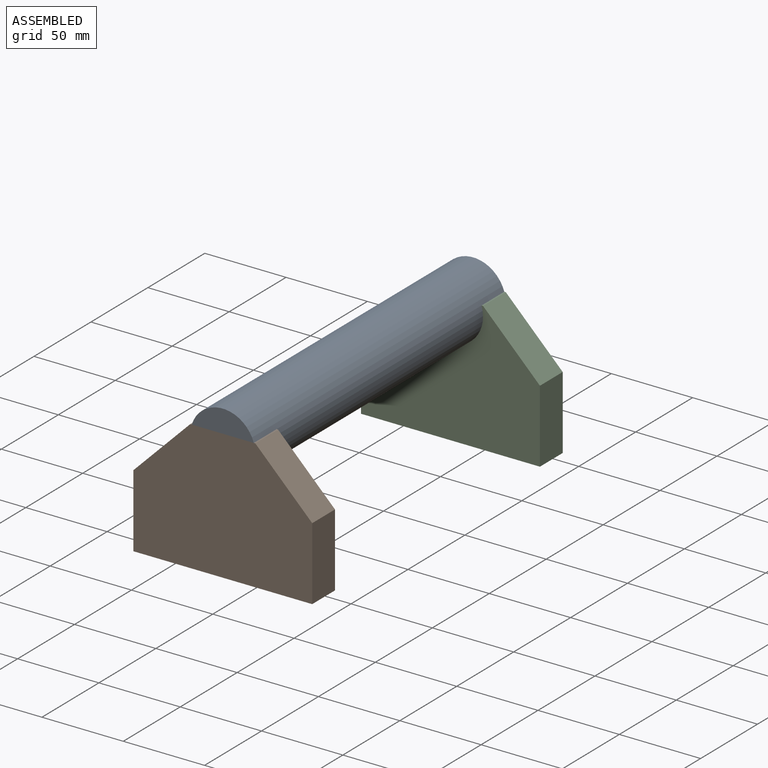
[diagram: assembled view]
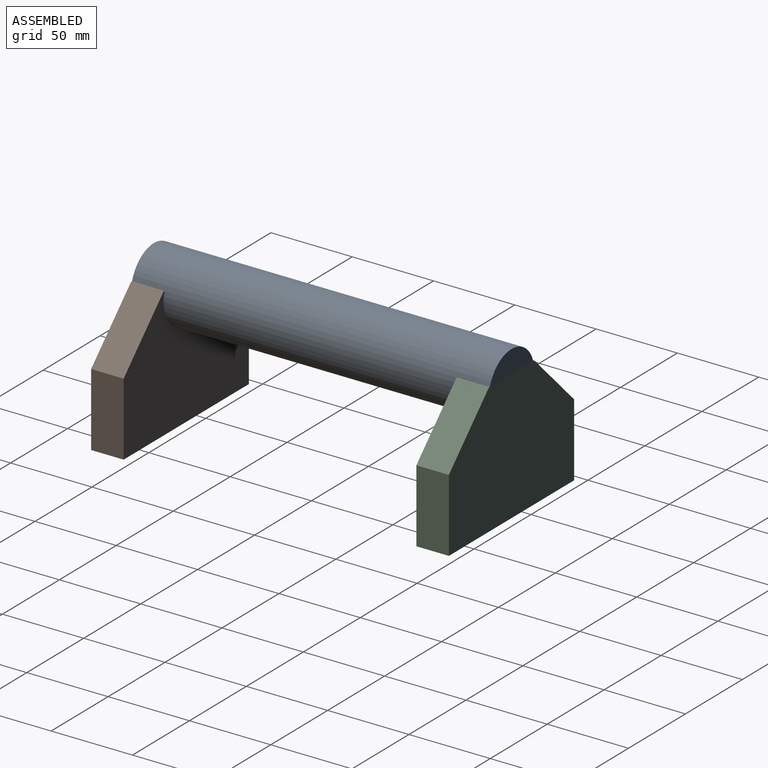
[diagram: assembled view, second angle]
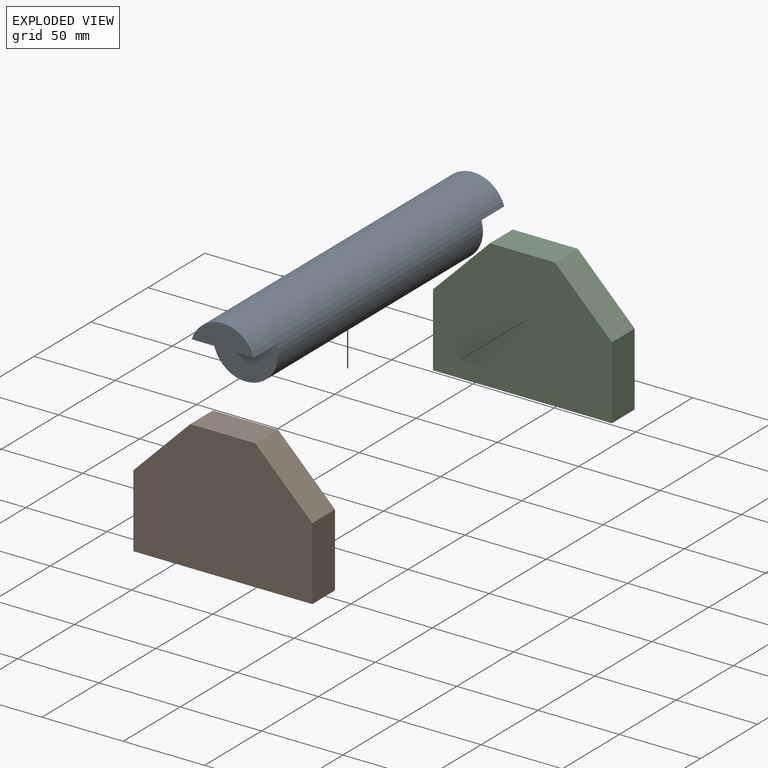
[diagram: exploded view]
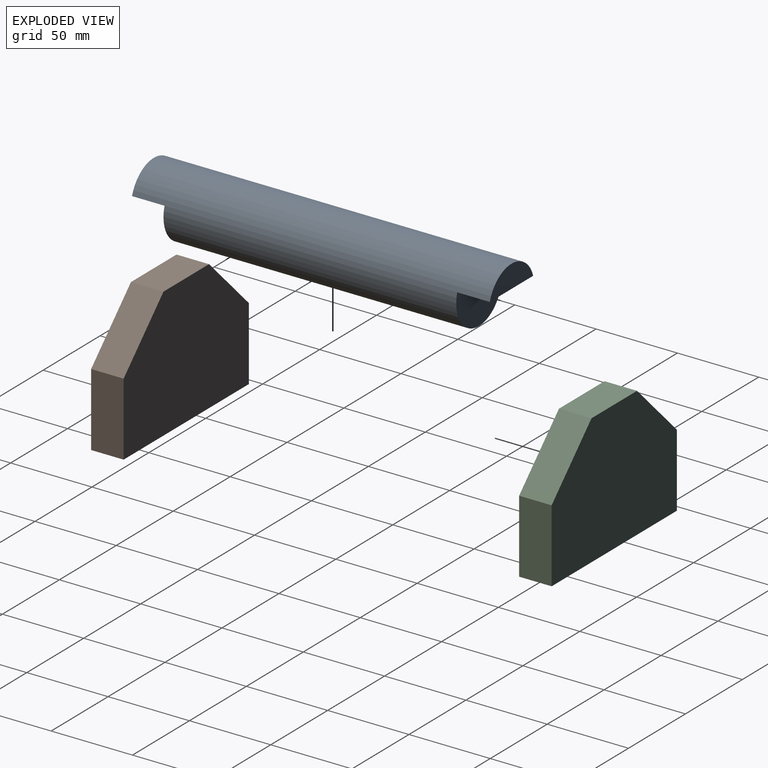
[diagram: exploded view, second angle]
ASSEMBLY  parts=3 mates=2
PART A: 7 faces, bbox 40x220x40 mm
  f0: plane 38.16x14mm, normal (0,1,0), area 392mm2, adj f1,f3
  f1: cylinder r=20mm len=220mm, axis (0,1,0), area 24645.2mm2, adj f0,f2,f3,f4,f5,f6
  f2: plane 38.16x14mm, normal (0,-1,0), area 392mm2, adj f1,f5
  f3: plane 38.16x20mm, normal (0,0,1), area 763.2mm2, adj f0,f1,f4
  f4: plane 40x26mm, normal (0,1,0), area 864.7mm2, adj f1,f3
  f5: plane 38.16x20mm, normal (0,0,1), area 763.2mm2, adj f1,f2,f6
  f6: plane 40x26mm, normal (0,-1,0), area 864.7mm2, adj f1,f5
PART B: 8 faces, bbox 110x20x80 mm
  f0: plane 40x20mm, normal (0,0,1), area 800mm2, adj f4,f5,f6,f7
  f1: plane 45x20mm, normal (-1,0,0), area 900mm2, adj f2,f4,f5,f7
  f2: plane 110x20mm, normal (0,0,-1), area 2200mm2, adj f1,f3,f4,f5
  f3: plane 45x20mm, normal (1,0,0), area 900mm2, adj f2,f4,f5,f6
  f4: plane 110x80mm, normal (0,-1,0), area 7575mm2, adj f0,f1,f2,f3,f6,f7
  f5: plane 110x80mm, normal (0,1,0), area 7575mm2, adj f0,f1,f2,f3,f6,f7
  f6: plane 35x35mm, normal (0.71,0,0.71), area 989.9mm2, adj f0,f3,f4,f5
  f7: plane 35x35mm, normal (-0.71,0,0.71), area 989.9mm2, adj f0,f1,f4,f5
PART C: same geometry as B
PLACE A rot(axis=(0,-1,0),180deg) t=(-23.8,91.38,-35.23)mm
PLACE B rot(axis=(0,1,0),0deg) t=(-23.8,-108.62,-69.23)mm
PLACE C rot(axis=(0,1,0),0deg) t=(-23.8,91.38,-69.23)mm
MATE fastened B.f0 <-> A.f5  axis (0,0,1) through (-23.8,-118.62,-29.23)mm
MATE fastened C.f0 <-> A.f3  axis (0,0,1) through (-23.8,81.38,-29.23)mm
